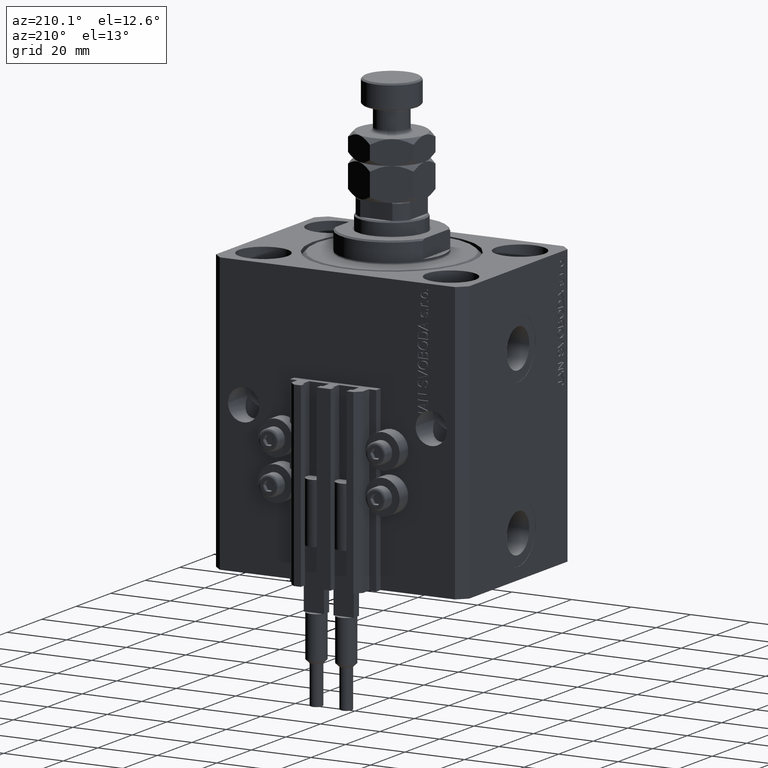
[diagram: clean part render]
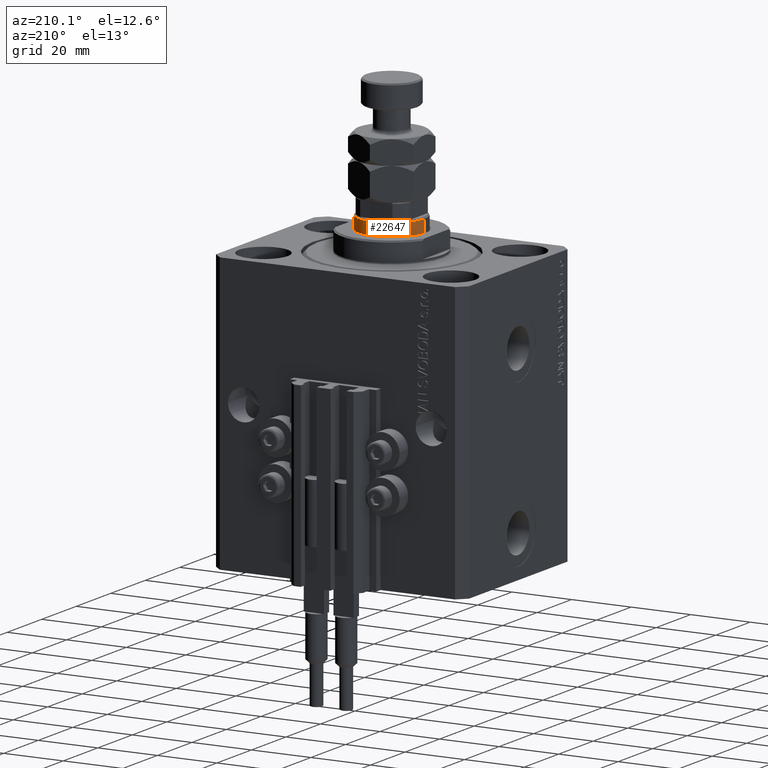
[diagram: same view with one face highlighted and labeled with its STEP entity id]
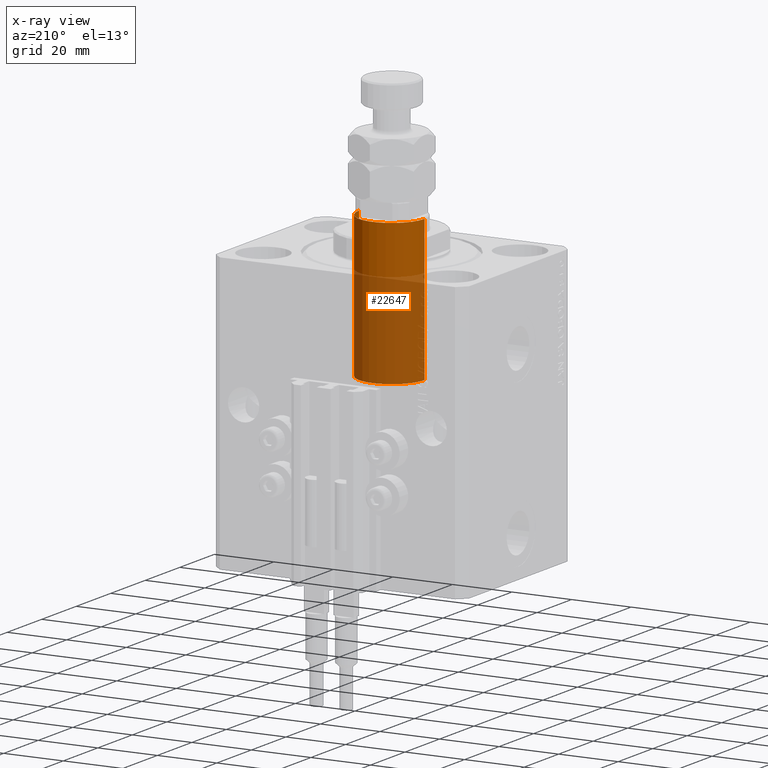
[diagram: x-ray of the same camera — body ghosted, the highlighted face saturated]
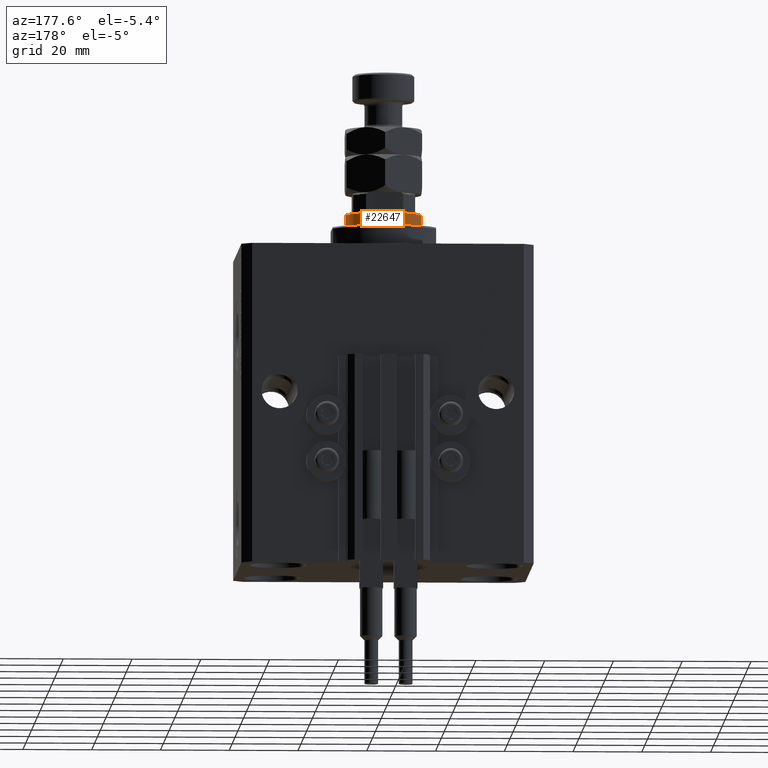
[diagram: same view with one face highlighted and labeled with its STEP entity id]
A machine part, auxiliary view. The second image highlights one B-rep face of the part: STEP entity #22647.
The next image is the same camera in x-ray: the body ghosted, the highlighted face saturated — about 66% of this face is hidden behind the body in this view.
A second angle (auxiliary view) of the same face is appended — the face is thin or edge-on in the first view.
In plain terms, the highlighted cylindrical surface (partial cylindrical patch) has radius 11 mm, axis along (-0, -0, -1).
Its self-contained STEP definition (entity closure, byte-faithful):
#135 = CIRCLE ( 'NONE', #49256, 11.00000000000000000 ) ;
#990 = CARTESIAN_POINT ( 'NONE',  ( -11.00000000000000000, 0.000000000000000000, 93.10000000000000853 ) ) ;
#2612 = CARTESIAN_POINT ( 'NONE',  ( 0.000000000000000000, 0.000000000000000000, 44.60000000000000142 ) ) ;
#2737 = ORIENTED_EDGE ( 'NONE', *, *, #6478, .T. ) ;
#4255 = VERTEX_POINT ( 'NONE', #38497 ) ;
#5342 = DIRECTION ( 'NONE',  ( -0.000000000000000000, -0.000000000000000000, -1.000000000000000000 ) ) ;
#5819 = CARTESIAN_POINT ( 'NONE',  ( 11.00000000000000000, 1.347111479062088207E-15, 92.60000000000005116 ) ) ;
#6478 = EDGE_CURVE ( 'NONE', #4255, #24714, #135, .T. ) ;
#6776 = ORIENTED_EDGE ( 'NONE', *, *, #45348, .T. ) ;
#7888 = EDGE_CURVE ( 'NONE', #20737, #24714, #13250, .T. ) ;
#10014 = CARTESIAN_POINT ( 'NONE',  ( -11.00000000000000000, 0.000000000000000000, 44.60000000000000142 ) ) ;
#10287 = DIRECTION ( 'NONE',  ( 1.000000000000000000, 0.000000000000000000, 0.000000000000000000 ) ) ;
#13250 = LINE ( 'NONE', #990, #32051 ) ;
#13538 = DIRECTION ( 'NONE',  ( 1.000000000000000000, 0.000000000000000000, 0.000000000000000000 ) ) ;
#13745 = ORIENTED_EDGE ( 'NONE', *, *, #45534, .T. ) ;
#16528 = ORIENTED_EDGE ( 'NONE', *, *, #7888, .F. ) ;
#18126 = VERTEX_POINT ( 'NONE', #5819 ) ;
#20737 = VERTEX_POINT ( 'NONE', #25573 ) ;
#22647 = ADVANCED_FACE ( 'NONE', ( #42724 ), #35057, .T. ) ;
#24714 = VERTEX_POINT ( 'NONE', #10014 ) ;
#25573 = CARTESIAN_POINT ( 'NONE',  ( -11.00000000000000000, 0.000000000000000000, 92.60000000000005116 ) ) ;
#29297 = AXIS2_PLACEMENT_3D ( 'NONE', #33014, #48603, #13538 ) ;
#31208 = DIRECTION ( 'NONE',  ( -1.000000000000000000, 0.000000000000000000, 0.000000000000000000 ) ) ;
#31744 = CIRCLE ( 'NONE', #29297, 11.00000000000000000 ) ;
#32051 = VECTOR ( 'NONE', #5342, 1000.000000000000000 ) ;
#33014 = CARTESIAN_POINT ( 'NONE',  ( 0.000000000000000000, 0.000000000000000000, 92.60000000000005116 ) ) ;
#33341 = DIRECTION ( 'NONE',  ( 0.000000000000000000, 0.000000000000000000, 1.000000000000000000 ) ) ;
#34103 = AXIS2_PLACEMENT_3D ( 'NONE', #50387, #38400, #31208 ) ;
#35057 = CYLINDRICAL_SURFACE ( 'NONE', #34103, 11.00000000000000000 ) ;
#36662 = VECTOR ( 'NONE', #41513, 1000.000000000000000 ) ;
#37419 = LINE ( 'NONE', #45333, #36662 ) ;
#38400 = DIRECTION ( 'NONE',  ( -0.000000000000000000, -0.000000000000000000, -1.000000000000000000 ) ) ;
#38497 = CARTESIAN_POINT ( 'NONE',  ( 11.00000000000000000, 1.347111479062088207E-15, 44.60000000000000142 ) ) ;
#41513 = DIRECTION ( 'NONE',  ( -0.000000000000000000, -0.000000000000000000, -1.000000000000000000 ) ) ;
#42724 = FACE_OUTER_BOUND ( 'NONE', #47419, .T. ) ;
#45333 = CARTESIAN_POINT ( 'NONE',  ( 11.00000000000000000, 1.347111479062088207E-15, 93.10000000000000853 ) ) ;
#45348 = EDGE_CURVE ( 'NONE', #18126, #4255, #37419, .T. ) ;
#45534 = EDGE_CURVE ( 'NONE', #20737, #18126, #31744, .T. ) ;
#47419 = EDGE_LOOP ( 'NONE', ( #13745, #6776, #2737, #16528 ) ) ;
#48603 = DIRECTION ( 'NONE',  ( 0.000000000000000000, 0.000000000000000000, -1.000000000000000000 ) ) ;
#49256 = AXIS2_PLACEMENT_3D ( 'NONE', #2612, #33341, #10287 ) ;
#50387 = CARTESIAN_POINT ( 'NONE',  ( 0.000000000000000000, 0.000000000000000000, 93.10000000000000853 ) ) ;